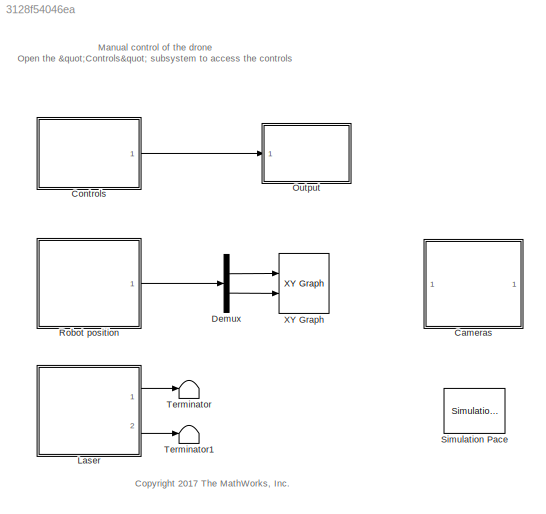
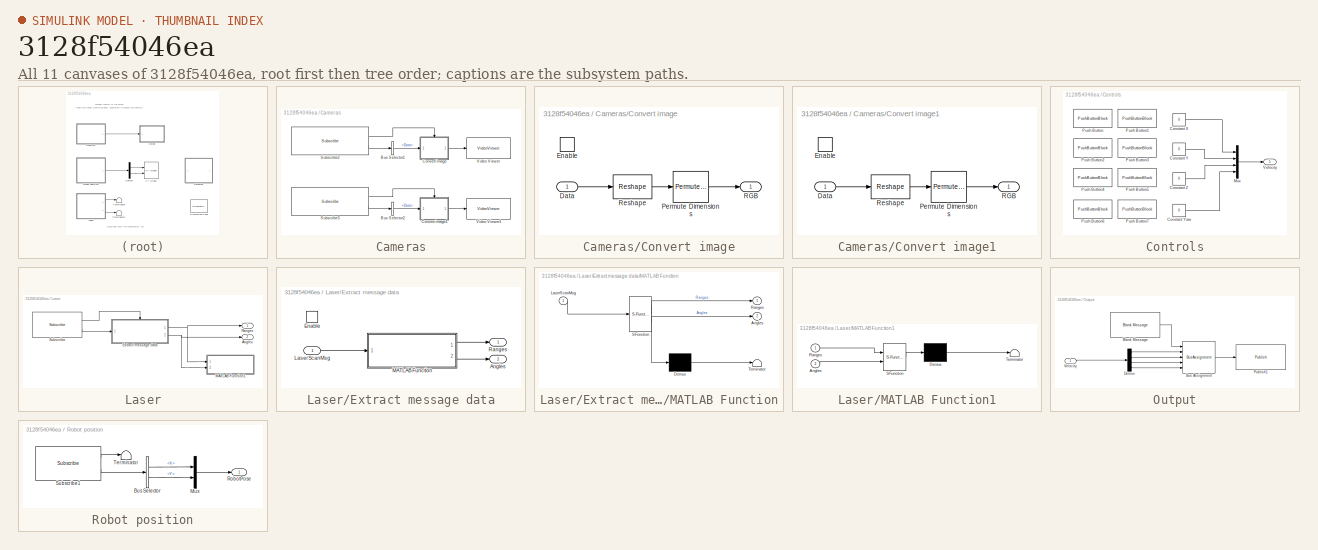
[diagram: thumbnail index - all 11 canvases of the model, root first then tree order]
MODEL slx_3128f54046ea
KIND model
CONFIG AbsTol = auto
CONFIG EnableMultiTasking = on
CONFIG FixedStep = 0.1
CONFIG MaxStep = auto
CONFIG MinStep = auto
CONFIG RelTol = 1e-3
CONFIG SampleTimeConstraint = Unconstrained
CONFIG Solver = FixedStepDiscrete
CONFIG SolverName = FixedStepDiscrete
CONFIG StartTime = 0.0
CONFIG StopTime = Inf
WORKSPACE source: MAT-file member
WORKSPACE SL_ROS_VariableLengthArrays_MaxSizes: struct (value not decoded)
BLOCK [SubSystem] Cameras
  Ports = []
  RequestExecContextInheritance = off
BLOCK [BusSelector] Cameras/Bus Selector1
  DialogController = Simulink.DDGSource_BusSelector
  OutputAsBus = off
  OutputSignals = Data
  Ports = [1, 1]
BLOCK [BusSelector] Cameras/Bus Selector2
  DialogController = Simulink.DDGSource_BusSelector
  OutputAsBus = off
  OutputSignals = Data
  Ports = [1, 1]
BLOCK [SubSystem] Cameras/Convert image
  Ports = [1, 1, 1]
  RequestExecContextInheritance = off
BLOCK [Inport] Cameras/Convert image/Data
  IconDisplay = Port number
BLOCK [EnablePort] Cameras/Convert image/Enable
  Ports = []
BLOCK [PermuteDimensions] Cameras/Convert image/Permute Dimensions
  Order = [3 2 1]
BLOCK [Outport] Cameras/Convert image/RGB
  IconDisplay = Port number
BLOCK [Reshape] Cameras/Convert image/Reshape
  OutputDimensionality = Customize
  OutputDimensions = [3 640 360]
  Ports = [1, 1]
BLOCK [SubSystem] Cameras/Convert image1
  Ports = [1, 1, 1]
  RequestExecContextInheritance = off
BLOCK [Inport] Cameras/Convert image1/Data
  IconDisplay = Port number
BLOCK [EnablePort] Cameras/Convert image1/Enable
  Ports = []
BLOCK [PermuteDimensions] Cameras/Convert image1/Permute Dimensions
  Order = [3 2 1]
BLOCK [Outport] Cameras/Convert image1/RGB
  IconDisplay = Port number
BLOCK [Reshape] Cameras/Convert image1/Reshape
  OutputDimensionality = Customize
  OutputDimensions = [3 640 360]
  Ports = [1, 1]
BLOCK [Reference] Cameras/Subscribe2  REF=robotlib/Subscribe
  Ports = [0, 2]
  SourceBlock = robotlib/Subscribe
  SourceProductBaseCode = RO
  SourceProductName = Robotics System Toolbox
  SourceType = ROS Subscribe
BLOCK [Reference] Cameras/Subscribe3  REF=robotlib/Subscribe
  Ports = [0, 2]
  SourceBlock = robotlib/Subscribe
  SourceProductBaseCode = RO
  SourceProductName = Robotics System Toolbox
  SourceType = ROS Subscribe
BLOCK [VideoViewer] Cameras/Video Viewer
  FigPos = [821 428 425 300]
  Ports = [1]
  ScopeSpecificationString = vipscopes.VideoViewerScopeCfg('CurrentConfiguration', extmgr.ConfigurationSet(extmgr.Configuration('Core','General UI',true),extmgr.Configuration('Core','Source UI',true),extmgr.Configuration('Sources','WiredSimulink',true),extmgr.Configuration('Visuals','Video',true),extmgr.Configuration('Tools','Image Navigation Tools',true),extmgr.Configuration('Tools','Image Tool',true),extmgr.Configuration('T...<+101ch>
  colormapValue = gray(256)
BLOCK [VideoViewer] Cameras/Video Viewer1
  FigPos = [823 784 428 240]
  Ports = [1]
  ScopeSpecificationString = vipscopes.VideoViewerScopeCfg('CurrentConfiguration', extmgr.ConfigurationSet(extmgr.Configuration('Core','General UI',true),extmgr.Configuration('Core','Source UI',true),extmgr.Configuration('Sources','WiredSimulink',true),extmgr.Configuration('Visuals','Video',true),extmgr.Configuration('Tools','Image Navigation Tools',true),extmgr.Configuration('Tools','Image Tool',true),extmgr.Configuration('T...<+100ch>
  colormapValue = gray(256)
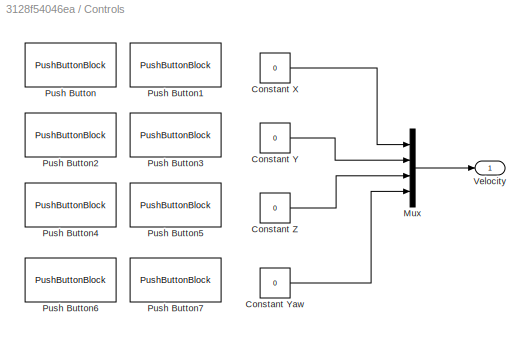
BLOCK [SubSystem] Controls
  Ports = [0, 1]
  RequestExecContextInheritance = off
BLOCK [Constant] Controls/Constant X
  Value = 0
BLOCK [Constant] Controls/Constant Y
  Value = 0
BLOCK [Constant] Controls/Constant Yaw
  Value = 0
BLOCK [Constant] Controls/Constant Z
  Value = 0
BLOCK [Mux] Controls/Mux
  DisplayOption = bar
  Ports = [4, 1]
BLOCK [PushButtonBlock] Controls/Push Button
  ButtonText = Backward
  LabelPosition = Top
  OnValue = -1
BLOCK [PushButtonBlock] Controls/Push Button1
  ButtonText = Forward
  LabelPosition = Top
BLOCK [PushButtonBlock] Controls/Push Button2
  ButtonText = Left
  LabelPosition = Top
BLOCK [PushButtonBlock] Controls/Push Button3
  ButtonText = Right
  LabelPosition = Top
  OnValue = -1
BLOCK [PushButtonBlock] Controls/Push Button4
  ButtonText = Down
  LabelPosition = Top
  OnValue = -1
BLOCK [PushButtonBlock] Controls/Push Button5
  ButtonText = Up
  LabelPosition = Top
BLOCK [PushButtonBlock] Controls/Push Button6
  ButtonText = Counterclockwise
  LabelPosition = Top
BLOCK [PushButtonBlock] Controls/Push Button7
  ButtonText = Clockwise
  LabelPosition = Top
  OnValue = -1
BLOCK [Outport] Controls/Velocity
  IconDisplay = Port number
BLOCK [Demux] Demux
  DisplayOption = bar
  Outputs = 2
  Ports = [1, 2]
BLOCK [SubSystem] Laser
  Ports = [0, 2]
  RequestExecContextInheritance = off
BLOCK [Outport] Laser/Angles
  IconDisplay = Port number
  Port = 2
BLOCK [SubSystem] Laser/Extract message data
  Ports = [1, 2, 1]
  RequestExecContextInheritance = off
BLOCK [Outport] Laser/Extract message data/Angles
  IconDisplay = Port number
  Port = 2
BLOCK [EnablePort] Laser/Extract message data/Enable
  Ports = []
BLOCK [Inport] Laser/Extract message data/LaserScanMsg
  IconDisplay = Port number
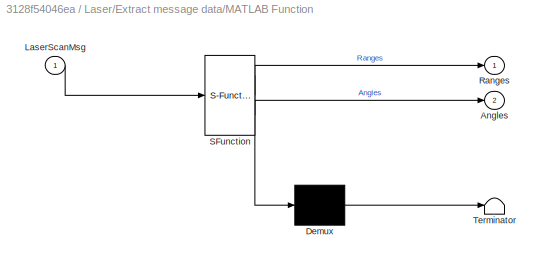
BLOCK [SubSystem] Laser/Extract message data/MATLAB Function
  ErrorFcn = Stateflow.Translate.translate
  PermitHierarchicalResolution = ExplicitOnly
  Ports = [1, 2]
  RequestExecContextInheritance = off
  SFBlockType = MATLAB Function
  TreatAsAtomicUnit = on
BLOCK [Demux] Laser/Extract message data/MATLAB Function/ Demux 
  Outputs = 1
  Ports = [1, 1]
BLOCK [S-Function] Laser/Extract message data/MATLAB Function/ SFunction 
  EnableBusSupport = on
  FunctionName = sf_sfun
  PortCounts = [1 3]
  Ports = [1, 3]
  SFcnIsStateOwnerBlock = off
  SFunctionDeploymentMode = off
  Tag = Stateflow S-Function manualControl_org 5
BLOCK [Terminator] Laser/Extract message data/MATLAB Function/ Terminator 
BLOCK [Outport] Laser/Extract message data/MATLAB Function/Angles
  IconDisplay = Port number
  Port = 2
BLOCK [Inport] Laser/Extract message data/MATLAB Function/LaserScanMsg
  IconDisplay = Port number
BLOCK [Outport] Laser/Extract message data/MATLAB Function/Ranges
  IconDisplay = Port number
BLOCK [Outport] Laser/Extract message data/Ranges
  IconDisplay = Port number
BLOCK [SubSystem] Laser/MATLAB Function1
  ErrorFcn = Stateflow.Translate.translate
  PermitHierarchicalResolution = ExplicitOnly
  Ports = [2]
  RequestExecContextInheritance = off
  SFBlockType = MATLAB Function
  TreatAsAtomicUnit = on
BLOCK [Demux] Laser/MATLAB Function1/ Demux 
  Outputs = 1
  Ports = [1, 1]
BLOCK [S-Function] Laser/MATLAB Function1/ SFunction 
  EnableBusSupport = on
  FunctionName = sf_sfun
  PortCounts = [2 1]
  Ports = [2, 1]
  SFcnIsStateOwnerBlock = off
  SFunctionDeploymentMode = off
  Tag = Stateflow S-Function manualControl_org 3
BLOCK [Terminator] Laser/MATLAB Function1/ Terminator 
BLOCK [Inport] Laser/MATLAB Function1/Angles
  IconDisplay = Port number
  Port = 2
BLOCK [Inport] Laser/MATLAB Function1/Ranges
  IconDisplay = Port number
BLOCK [Outport] Laser/Ranges
  IconDisplay = Port number
BLOCK [Reference] Laser/Subscribe  REF=robotlib/Subscribe
  Ports = [0, 2]
  SourceBlock = robotlib/Subscribe
  SourceProductBaseCode = RO
  SourceProductName = Robotics System Toolbox
  SourceType = ROS Subscribe
BLOCK [SubSystem] Output
  Ports = [1]
  RequestExecContextInheritance = off
BLOCK [Reference] Output/Blank Message  REF=robotlib/Blank Message
  Ports = [0, 1]
  SourceBlock = robotlib/Blank Message
  SourceProductBaseCode = RO
  SourceProductName = Robotics System Toolbox
  SourceType = ROS Blank Message
BLOCK [BusAssignment] Output/Bus Assignment
  AssignedSignals = Linear.X,Linear.Y,Linear.Z,Angular.Z
  DialogController = Simulink.DDGSource_BusAssignment
  Ports = [5, 1]
BLOCK [Demux] Output/Demux
  DisplayOption = bar
  Ports = [1, 4]
BLOCK [Reference] Output/Publish1  REF=robotlib/Publish
  Ports = [1]
  SourceBlock = robotlib/Publish
  SourceProductBaseCode = RO
  SourceProductName = Robotics System Toolbox
  SourceType = ROS Publish
BLOCK [Inport] Output/Velocity
  IconDisplay = Port number
BLOCK [SubSystem] Robot position
  Ports = [0, 1]
  RequestExecContextInheritance = off
BLOCK [BusSelector] Robot position/Bus Selector
  DialogController = Simulink.DDGSource_BusSelector
  OutputAsBus = off
  OutputSignals = Pose.Pose.Position.X,Pose.Pose.Position.Y
  Ports = [1, 2]
BLOCK [Mux] Robot position/Mux
  DisplayOption = bar
  Inputs = 2
  Ports = [2, 1]
BLOCK [Outport] Robot position/RobotPose
  IconDisplay = Port number
BLOCK [Reference] Robot position/Subscribe1  REF=robotlib/Subscribe
  Ports = [0, 2]
  SourceBlock = robotlib/Subscribe
  SourceProductBaseCode = RO
  SourceProductName = Robotics System Toolbox
  SourceType = ROS Subscribe
BLOCK [Terminator] Robot position/Terminator
BLOCK [Reference] Simulation Pace  REF=aerolibanimutils/Simulation Pace
  AttributesFormatString = %<SleepMode>\n%<SimulationPace> sec/sec
  Ports = []
  SourceBlock = aerolibanimutils/Simulation Pace
  SourceProductBaseCode = AE
  SourceProductName = Aerospace Blockset
  SourceType = Simulation Pace
BLOCK [Terminator] Terminator
BLOCK [Terminator] Terminator1
BLOCK [Reference] XY Graph  REF=simulink/Sinks/XY Graph
  Ports = [2]
  SourceBlock = simulink/Sinks/XY Graph
  SourceProductBaseCode = SL
  SourceProductName = Simulink
  SourceType = XY scope.
ANNOTATION (root): Manual control of the drone Open the "Controls" subsystem to access the controls
ANNOTATION (root): <copyright redacted>
LINE Cameras/Bus Selector1:1 -> Cameras/Convert image:1
LINE Cameras/Bus Selector2:1 -> Cameras/Convert image1:1
LINE Cameras/Convert image/Data:1 -> Cameras/Convert image/Reshape:1
LINE Cameras/Convert image/Permute Dimensions:1 -> Cameras/Convert image/RGB:1
LINE Cameras/Convert image/Reshape:1 -> Cameras/Convert image/Permute Dimensions:1
LINE Cameras/Convert image1/Data:1 -> Cameras/Convert image1/Reshape:1
LINE Cameras/Convert image1/Permute Dimensions:1 -> Cameras/Convert image1/RGB:1
LINE Cameras/Convert image1/Reshape:1 -> Cameras/Convert image1/Permute Dimensions:1
LINE Cameras/Convert image1:1 -> Cameras/Video Viewer1:1
LINE Cameras/Convert image:1 -> Cameras/Video Viewer:1
LINE Cameras/Subscribe2:1 -> Cameras/Convert image:enable
LINE Cameras/Subscribe2:2 -> Cameras/Bus Selector1:1
LINE Cameras/Subscribe3:1 -> Cameras/Convert image1:enable
LINE Cameras/Subscribe3:2 -> Cameras/Bus Selector2:1
LINE Controls/Constant X:1 -> Controls/Mux:1
LINE Controls/Constant Y:1 -> Controls/Mux:2
LINE Controls/Constant Yaw:1 -> Controls/Mux:4
LINE Controls/Constant Z:1 -> Controls/Mux:3
LINE Controls/Mux:1 -> Controls/Velocity:1
LINE Controls:1 -> Output:1
LINE Demux:1 -> XY Graph:1
LINE Demux:2 -> XY Graph:2
LINE Laser/Extract message data/LaserScanMsg:1 -> Laser/Extract message data/MATLAB Function:1
LINE Laser/Extract message data/MATLAB Function:1 -> Laser/Extract message data/Ranges:1
LINE Laser/Extract message data/MATLAB Function:2 -> Laser/Extract message data/Angles:1
NET Laser/Extract message data:1 -> Laser/MATLAB Function1:1, Laser/Ranges:1
NET Laser/Extract message data:2 -> Laser/Angles:1, Laser/MATLAB Function1:2
LINE Laser/Subscribe:1 -> Laser/Extract message data:enable
LINE Laser/Subscribe:2 -> Laser/Extract message data:1
LINE Laser:1 -> Terminator:1
LINE Laser:2 -> Terminator1:1
LINE Output/Blank Message:1 -> Output/Bus Assignment:1
LINE Output/Bus Assignment:1 -> Output/Publish1:1
LINE Output/Demux:1 -> Output/Bus Assignment:2
LINE Output/Demux:2 -> Output/Bus Assignment:3
LINE Output/Demux:3 -> Output/Bus Assignment:4
LINE Output/Demux:4 -> Output/Bus Assignment:5
LINE Output/Velocity:1 -> Output/Demux:1
LINE Robot position/Bus Selector:1 -> Robot position/Mux:1
LINE Robot position/Bus Selector:2 -> Robot position/Mux:2
LINE Robot position/Mux:1 -> Robot position/RobotPose:1
LINE Robot position/Subscribe1:1 -> Robot position/Terminator:1
LINE Robot position/Subscribe1:2 -> Robot position/Bus Selector:1
LINE Robot position:1 -> Demux:1
note: NET lines group one-source signal fan-out (src -> all destinations, sorted); 1:1 wires keep LINE
CHART Laser/MATLAB Function1 states=1 transitions=1
  STATE_LABEL 'eML_blk_kernel()'
  STATE_LABEL "SCRIPT:\nfunction plotLaser(Ranges, Angles)\ncoder.extrinsic('polarplot');\npersistent p;\nif isempty(p)\n    p = polarplot(0, 0, '.');\n    set(gca, 'ThetaZeroLocation', 'top', 'ThetaLim', [-135 135], ...\n        'RAxisLocation', 0, 'RLim', [0 10]);\nend\nif ishandle(p)\n    set(p, 'ThetaData', Angles);\n    set(p, 'RData', Ranges);\n    drawnow limitrate;\nend\n"
CHART Laser/Extract message data/MATLAB Function states=1 transitions=1
  STATE_LABEL 'eML_blk_kernel()'
  STATE_LABEL "SCRIPT:\nfunction [Ranges, Angles] = ExtractRangeData(LaserScanMsg)\n%#codegen\n\n% Extract Range information\nRanges = double(LaserScanMsg.Ranges);\n\n% Construct Angles vector using AngleMin and AngleIncrement from sensor\n% reading.\nangMin = double(LaserScanMsg.AngleMin);\nangMax = double(LaserScanMsg.AngleMax);\nrawAngles = linspace(angMax, angMin, numel(Ranges)).';\n\n% Wrap the angles to the (-pi,pi] in...<+63ch>"
